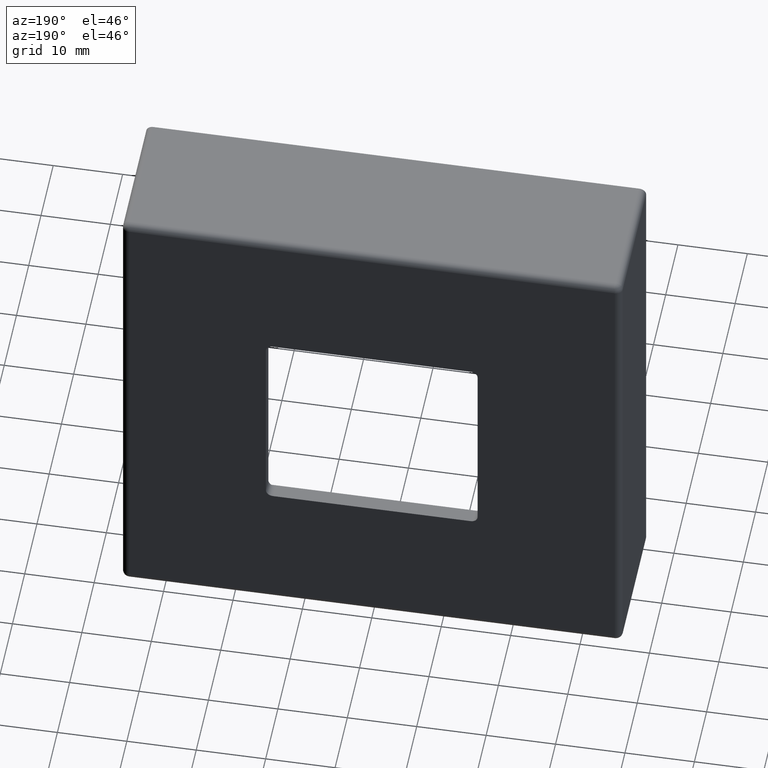
[diagram: clean part render]
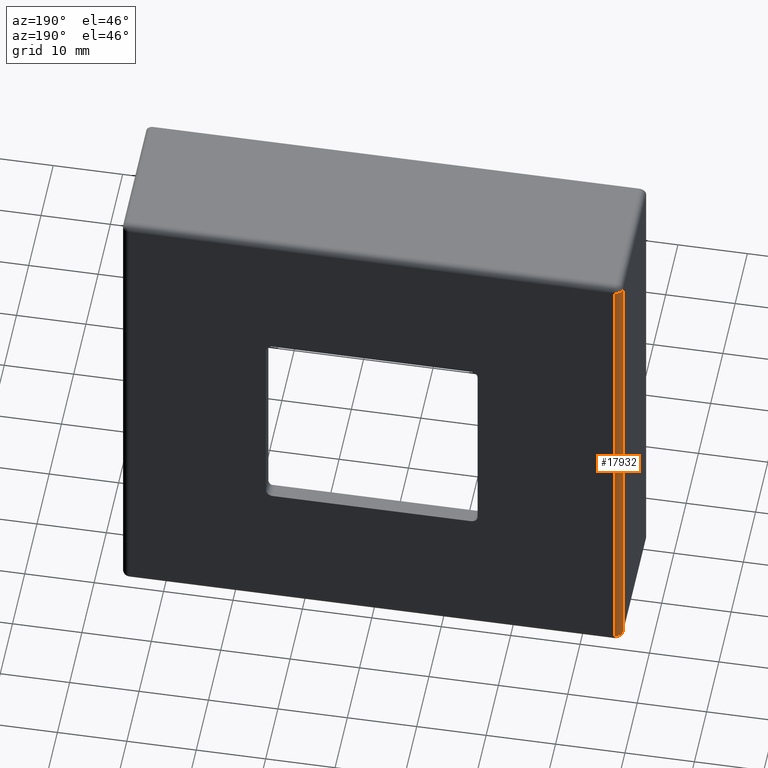
[diagram: same view with one face highlighted and labeled with its STEP entity id]
A machine part, auxiliary view. The second image highlights one B-rep face of the part: STEP entity #17932.
In plain terms, the highlighted cylindrical surface (edge-blend (fillet) strip) has radius 1 mm, axis along (-0, 0, -1).
Its self-contained STEP definition (entity closure, byte-faithful):
#701 = ORIENTED_EDGE ( 'NONE', *, *, #1255, .T. ) ;
#894 = DIRECTION ( 'NONE',  ( -1.000000000000000000, 0.000000000000000000, 9.637352644315552102E-17 ) ) ;
#1255 = EDGE_CURVE ( 'NONE', #14200, #5754, #1860, .T. ) ;
#1494 = EDGE_CURVE ( 'NONE', #14200, #15472, #9997, .T. ) ;
#1860 = CIRCLE ( 'NONE', #10913, 1.000000000000000888 ) ;
#1932 = EDGE_CURVE ( 'NONE', #8140, #5754, #2738, .T. ) ;
#2528 = VECTOR ( 'NONE', #10588, 1000.000000000000000 ) ;
#2671 = CYLINDRICAL_SURFACE ( 'NONE', #17144, 1.000000000000000888 ) ;
#2738 = LINE ( 'NONE', #8535, #4712 ) ;
#2974 = DIRECTION ( 'NONE',  ( -1.000000000000000000, 0.000000000000000000, 0.000000000000000000 ) ) ;
#3607 = CARTESIAN_POINT ( 'NONE',  ( -36.00000000000001421, 19.00000000000000000, 34.99999999999999289 ) ) ;
#3644 = EDGE_LOOP ( 'NONE', ( #701, #14049, #7022, #16001 ) ) ;
#4712 = VECTOR ( 'NONE', #5905, 1000.000000000000000 ) ;
#5754 = VERTEX_POINT ( 'NONE', #10076 ) ;
#5905 = DIRECTION ( 'NONE',  ( -9.637352644315597708E-17, -0.000000000000000000, -1.000000000000000000 ) ) ;
#7022 = ORIENTED_EDGE ( 'NONE', *, *, #7419, .F. ) ;
#7419 = EDGE_CURVE ( 'NONE', #15472, #8140, #12781, .T. ) ;
#8140 = VERTEX_POINT ( 'NONE', #3607 ) ;
#8535 = CARTESIAN_POINT ( 'NONE',  ( -36.00000000000002132, 19.00000000000000000, -36.00000000000000000 ) ) ;
#9004 = CARTESIAN_POINT ( 'NONE',  ( -35.00000000000000711, 20.00000000000000000, -34.99999999999999289 ) ) ;
#9813 = CARTESIAN_POINT ( 'NONE',  ( -35.00000000000000000, 20.00000000000000000, 34.99999999999999289 ) ) ;
#9977 = CARTESIAN_POINT ( 'NONE',  ( -35.00000000000001421, 19.00000000000000000, -34.99999999999999289 ) ) ;
#9997 = LINE ( 'NONE', #13100, #2528 ) ;
#10076 = CARTESIAN_POINT ( 'NONE',  ( -36.00000000000002132, 19.00000000000000000, -34.99999999999999289 ) ) ;
#10140 = FACE_OUTER_BOUND ( 'NONE', #3644, .T. ) ;
#10588 = DIRECTION ( 'NONE',  ( 9.637352644315597708E-17, -0.000000000000000000, 1.000000000000000000 ) ) ;
#10913 = AXIS2_PLACEMENT_3D ( 'NONE', #9977, #14140, #2974 ) ;
#11628 = AXIS2_PLACEMENT_3D ( 'NONE', #17828, #15010, #12231 ) ;
#12231 = DIRECTION ( 'NONE',  ( 1.000000000000000000, 0.000000000000000000, 0.000000000000000000 ) ) ;
#12781 = CIRCLE ( 'NONE', #11628, 1.000000000000000888 ) ;
#13100 = CARTESIAN_POINT ( 'NONE',  ( -35.00000000000000000, 20.00000000000000000, 35.99999999999999289 ) ) ;
#14049 = ORIENTED_EDGE ( 'NONE', *, *, #1932, .F. ) ;
#14140 = DIRECTION ( 'NONE',  ( -0.000000000000000000, -0.000000000000000000, 1.000000000000000000 ) ) ;
#14200 = VERTEX_POINT ( 'NONE', #9004 ) ;
#15010 = DIRECTION ( 'NONE',  ( 0.000000000000000000, -0.000000000000000000, 1.000000000000000000 ) ) ;
#15472 = VERTEX_POINT ( 'NONE', #9813 ) ;
#16001 = ORIENTED_EDGE ( 'NONE', *, *, #1494, .F. ) ;
#16221 = CARTESIAN_POINT ( 'NONE',  ( -35.00000000000000711, 19.00000000000000000, 3.373073425510460036E-15 ) ) ;
#17144 = AXIS2_PLACEMENT_3D ( 'NONE', #16221, #17756, #894 ) ;
#17756 = DIRECTION ( 'NONE',  ( -9.637352644315597708E-17, 0.000000000000000000, -1.000000000000000000 ) ) ;
#17828 = CARTESIAN_POINT ( 'NONE',  ( -35.00000000000000000, 19.00000000000000000, 34.99999999999999289 ) ) ;
#17932 = ADVANCED_FACE ( 'NONE', ( #10140 ), #2671, .T. ) ;